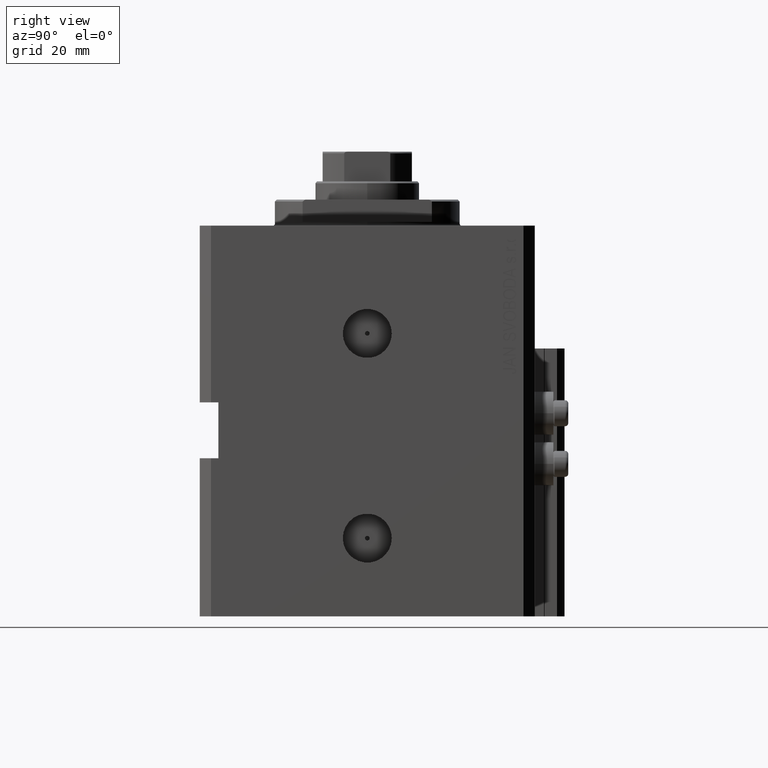
[diagram: clean part render]
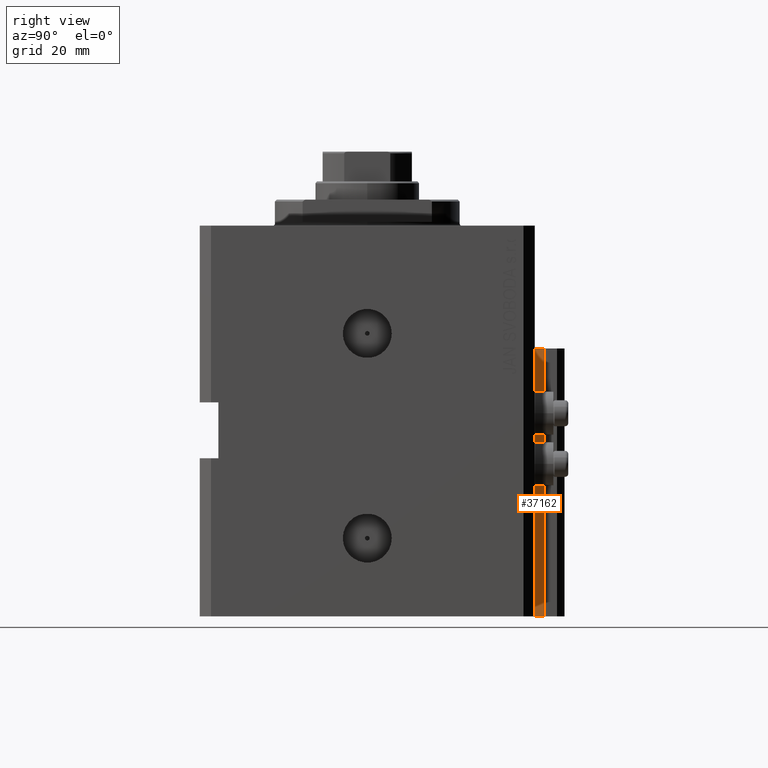
[diagram: same view with one face highlighted and labeled with its STEP entity id]
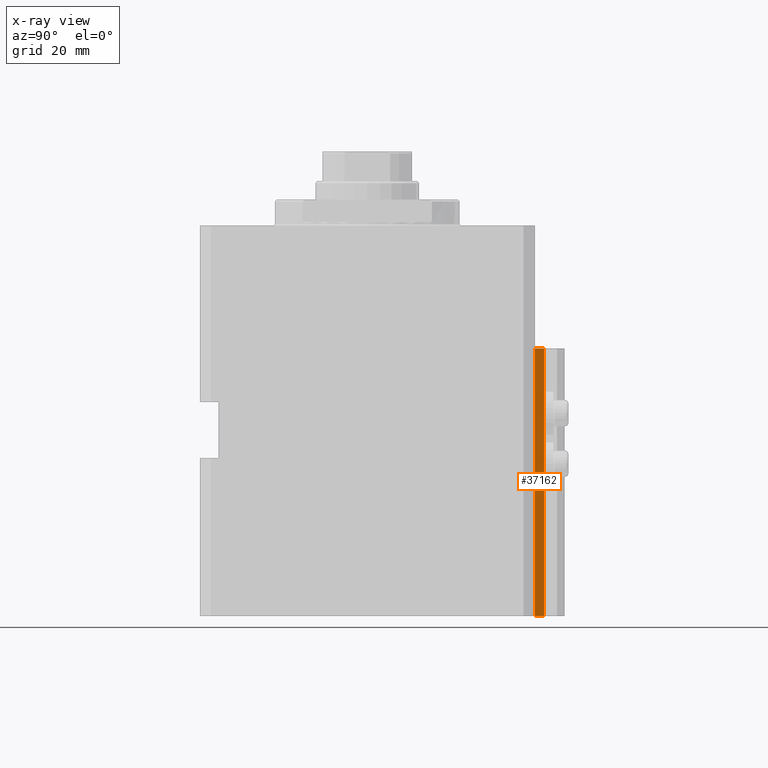
[diagram: x-ray of the same camera — body ghosted, the highlighted face saturated]
A machine part, right view. The second image highlights one B-rep face of the part: STEP entity #37162.
The next image is the same camera in x-ray: the body ghosted, the highlighted face saturated — about 0% of this face is hidden behind the body in this view.
In plain terms, the highlighted planar face has unit normal (1, 0, 0).
Its self-contained STEP definition (entity closure, byte-faithful):
#632 = VERTEX_POINT ( 'NONE', #43718 ) ;
#2149 = CARTESIAN_POINT ( 'NONE',  ( 14.49999999999999645, 45.00000000000000000, -105.0000000000000000 ) ) ;
#3761 = ORIENTED_EDGE ( 'NONE', *, *, #13658, .T. ) ;
#6136 = VECTOR ( 'NONE', #25004, 1000.000000000000000 ) ;
#6408 = LINE ( 'NONE', #25302, #49098 ) ;
#8513 = EDGE_CURVE ( 'NONE', #37043, #632, #9599, .T. ) ;
#9244 = CARTESIAN_POINT ( 'NONE',  ( 14.49999999999999645, 47.50000000000001421, -105.0000000000000000 ) ) ;
#9599 = LINE ( 'NONE', #9842, #6136 ) ;
#9842 = CARTESIAN_POINT ( 'NONE',  ( 14.49999999999999645, 47.50000000000001421, -105.0000000000000000 ) ) ;
#9964 = DIRECTION ( 'NONE',  ( 1.000000000000000000, 0.000000000000000000, 0.000000000000000000 ) ) ;
#10702 = PLANE ( 'NONE',  #47179 ) ;
#11642 = EDGE_LOOP ( 'NONE', ( #15095, #47802, #3761, #20710 ) ) ;
#13658 = EDGE_CURVE ( 'NONE', #48663, #37043, #48282, .T. ) ;
#15095 = ORIENTED_EDGE ( 'NONE', *, *, #41292, .F. ) ;
#20710 = ORIENTED_EDGE ( 'NONE', *, *, #8513, .T. ) ;
#21399 = FACE_OUTER_BOUND ( 'NONE', #11642, .T. ) ;
#21482 = CARTESIAN_POINT ( 'NONE',  ( 14.49999999999999645, 45.00000000000000000, -33.00000000000000000 ) ) ;
#21665 = VERTEX_POINT ( 'NONE', #35379 ) ;
#25004 = DIRECTION ( 'NONE',  ( 0.000000000000000000, 0.000000000000000000, 1.000000000000000000 ) ) ;
#25302 = CARTESIAN_POINT ( 'NONE',  ( 14.49999999999999645, 45.00000000000000000, -105.0000000000000000 ) ) ;
#28874 = CARTESIAN_POINT ( 'NONE',  ( 14.49999999999999645, 45.00000000000000000, -105.0000000000000000 ) ) ;
#35379 = CARTESIAN_POINT ( 'NONE',  ( 14.49999999999999645, 45.00000000000000000, -33.00000000000000000 ) ) ;
#35947 = LINE ( 'NONE', #21482, #43347 ) ;
#36593 = DIRECTION ( 'NONE',  ( 0.000000000000000000, 1.000000000000000000, 0.000000000000000000 ) ) ;
#36765 = DIRECTION ( 'NONE',  ( 0.000000000000000000, 0.000000000000000000, 1.000000000000000000 ) ) ;
#37043 = VERTEX_POINT ( 'NONE', #9244 ) ;
#37162 = ADVANCED_FACE ( 'NONE', ( #21399 ), #10702, .T. ) ;
#37324 = CARTESIAN_POINT ( 'NONE',  ( 14.49999999999999645, 45.00000000000000000, -105.0000000000000000 ) ) ;
#38781 = VECTOR ( 'NONE', #36593, 1000.000000000000000 ) ;
#41292 = EDGE_CURVE ( 'NONE', #21665, #632, #35947, .T. ) ;
#43347 = VECTOR ( 'NONE', #43652, 1000.000000000000000 ) ;
#43652 = DIRECTION ( 'NONE',  ( 0.000000000000000000, 1.000000000000000000, 0.000000000000000000 ) ) ;
#43718 = CARTESIAN_POINT ( 'NONE',  ( 14.49999999999999645, 47.50000000000001421, -33.00000000000000000 ) ) ;
#47179 = AXIS2_PLACEMENT_3D ( 'NONE', #37324, #9964, #48027 ) ;
#47718 = EDGE_CURVE ( 'NONE', #48663, #21665, #6408, .T. ) ;
#47802 = ORIENTED_EDGE ( 'NONE', *, *, #47718, .F. ) ;
#48027 = DIRECTION ( 'NONE',  ( 0.000000000000000000, 0.000000000000000000, -1.000000000000000000 ) ) ;
#48282 = LINE ( 'NONE', #28874, #38781 ) ;
#48663 = VERTEX_POINT ( 'NONE', #2149 ) ;
#49098 = VECTOR ( 'NONE', #36765, 1000.000000000000000 ) ;